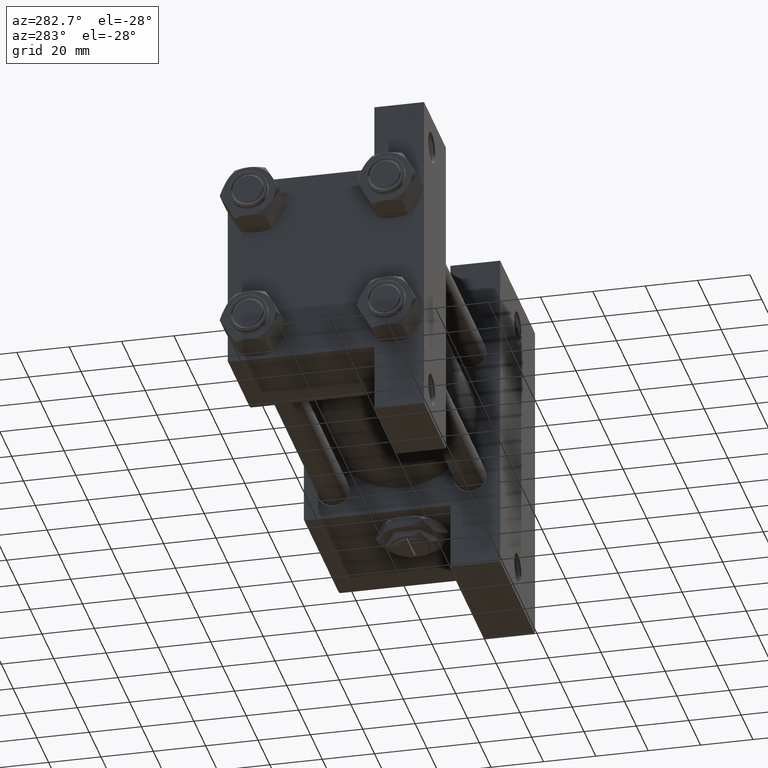
[diagram: clean part render]
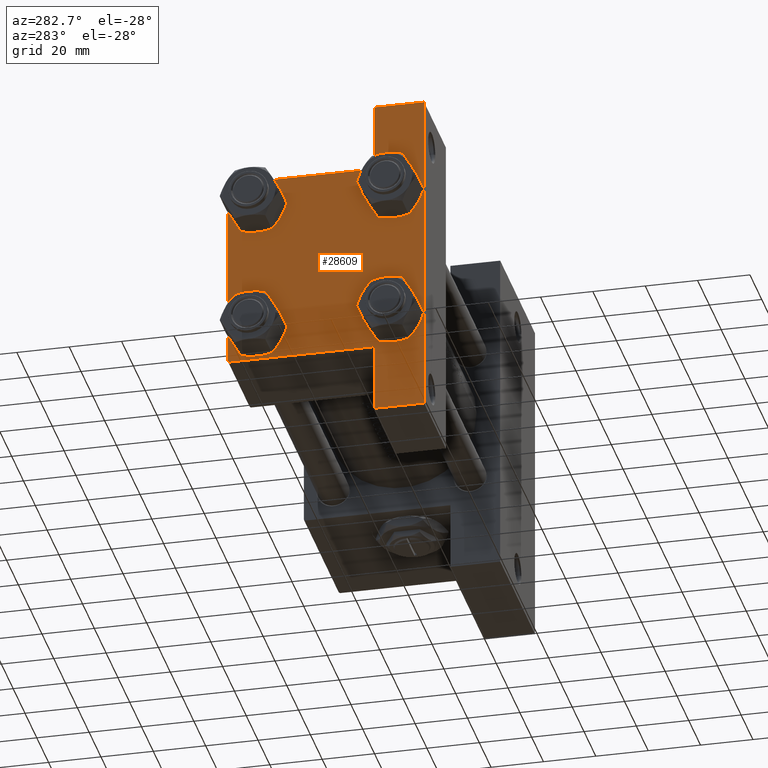
[diagram: same view with one face highlighted and labeled with its STEP entity id]
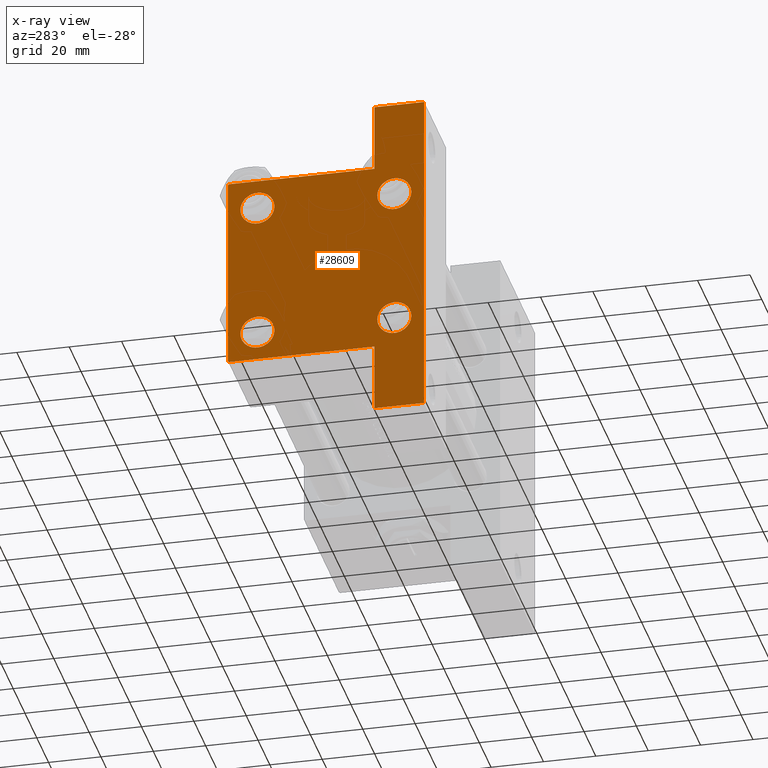
[diagram: x-ray of the same camera — body ghosted, the highlighted face saturated]
A machine part, auxiliary view. The second image highlights one B-rep face of the part: STEP entity #28609.
The next image is the same camera in x-ray: the body ghosted, the highlighted face saturated — about 0% of this face is hidden behind the body in this view.
In plain terms, the highlighted planar face has unit normal (-1, 0, -0).
Its self-contained STEP definition (entity closure, byte-faithful):
#204 = CARTESIAN_POINT ( 'NONE',  ( 3.977209754999744250E-16, -63.49999999999998579, -18.50000000000000355 ) ) ;
#778 = ORIENTED_EDGE ( 'NONE', *, *, #5366, .T. ) ;
#880 = CARTESIAN_POINT ( 'NONE',  ( 0.000000000000000000, 26.14999999999999858, 19.64999999999998437 ) ) ;
#1292 = LINE ( 'NONE', #38924, #31070 ) ;
#1486 = VECTOR ( 'NONE', #10148, 1000.000000000000000 ) ;
#1515 = CARTESIAN_POINT ( 'NONE',  ( 0.000000000000000000, -26.14999999999999147, -26.15000000000000924 ) ) ;
#2003 = EDGE_CURVE ( 'NONE', #48728, #31368, #10811, .T. ) ;
#2143 = AXIS2_PLACEMENT_3D ( 'NONE', #25685, #48849, #28938 ) ;
#2450 = CARTESIAN_POINT ( 'NONE',  ( 0.000000000000000000, -26.14999999999999147, -26.15000000000000924 ) ) ;
#2465 = FACE_BOUND ( 'NONE', #14787, .T. ) ;
#2484 = VERTEX_POINT ( 'NONE', #6618 ) ;
#2559 = ORIENTED_EDGE ( 'NONE', *, *, #16182, .T. ) ;
#3031 = VERTEX_POINT ( 'NONE', #19744 ) ;
#3149 = CARTESIAN_POINT ( 'NONE',  ( 3.977209754999747208E-16, -63.49999999999998579, 26.72167621838007889 ) ) ;
#3323 = VECTOR ( 'NONE', #20238, 1000.000000000000000 ) ;
#3776 = DIRECTION ( 'NONE',  ( 1.000000000000000000, -0.000000000000000000, 0.000000000000000000 ) ) ;
#3865 = AXIS2_PLACEMENT_3D ( 'NONE', #21056, #25279, #14094 ) ;
#3994 = EDGE_CURVE ( 'NONE', #10562, #34906, #47477, .T. ) ;
#4321 = CARTESIAN_POINT ( 'NONE',  ( 0.000000000000000000, 37.49999999999999289, -18.49999999999999645 ) ) ;
#4373 = VERTEX_POINT ( 'NONE', #11929 ) ;
#5366 = EDGE_CURVE ( 'NONE', #8129, #31760, #48011, .T. ) ;
#5531 = DIRECTION ( 'NONE',  ( -0.000000000000000000, 0.000000000000000000, 1.000000000000000000 ) ) ;
#6458 = AXIS2_PLACEMENT_3D ( 'NONE', #48037, #25602, #37326 ) ;
#6560 = CARTESIAN_POINT ( 'NONE',  ( 0.000000000000000000, 26.14999999999999858, -19.64999999999998792 ) ) ;
#6578 = ORIENTED_EDGE ( 'NONE', *, *, #11622, .T. ) ;
#6618 = CARTESIAN_POINT ( 'NONE',  ( 0.000000000000000000, -37.00000000000000711, 37.49999999999999289 ) ) ;
#6775 = CARTESIAN_POINT ( 'NONE',  ( 0.000000000000000000, 37.49999999999999289, 37.50000000000000000 ) ) ;
#6929 = CARTESIAN_POINT ( 'NONE',  ( 0.000000000000000000, 0.000000000000000000, 0.000000000000000000 ) ) ;
#7022 = LINE ( 'NONE', #6775, #34326 ) ;
#7112 = DIRECTION ( 'NONE',  ( -0.000000000000000000, 0.7071067811865474617, 0.7071067811865474617 ) ) ;
#7428 = DIRECTION ( 'NONE',  ( 1.000000000000000000, -0.000000000000000000, 0.000000000000000000 ) ) ;
#7674 = CARTESIAN_POINT ( 'NONE',  ( 0.000000000000000000, -37.50000000000000711, 37.49999999999999289 ) ) ;
#7938 = CIRCLE ( 'NONE', #48460, 6.500000000000023093 ) ;
#8129 = VERTEX_POINT ( 'NONE', #10785 ) ;
#8415 = DIRECTION ( 'NONE',  ( 4.278042683914906889E-17, -1.000000000000000000, 0.000000000000000000 ) ) ;
#8522 = EDGE_CURVE ( 'NONE', #32455, #21550, #22062, .T. ) ;
#9760 = EDGE_LOOP ( 'NONE', ( #35202, #31380 ) ) ;
#9894 = EDGE_CURVE ( 'NONE', #31760, #21550, #14749, .T. ) ;
#10148 = DIRECTION ( 'NONE',  ( 0.000000000000000000, -1.734723475976806848E-16, -1.000000000000000000 ) ) ;
#10562 = VERTEX_POINT ( 'NONE', #6560 ) ;
#10707 = ORIENTED_EDGE ( 'NONE', *, *, #24425, .T. ) ;
#10785 = CARTESIAN_POINT ( 'NONE',  ( 1.595073532467135441E-14, 63.50000000000000000, -18.50000000000000355 ) ) ;
#10811 = CIRCLE ( 'NONE', #39483, 6.500000000000015987 ) ;
#10905 = LINE ( 'NONE', #26079, #36569 ) ;
#11586 = EDGE_LOOP ( 'NONE', ( #25564, #24644 ) ) ;
#11622 = EDGE_CURVE ( 'NONE', #34906, #10562, #25343, .T. ) ;
#11829 = LINE ( 'NONE', #18570, #26233 ) ;
#11929 = CARTESIAN_POINT ( 'NONE',  ( 0.000000000000000000, 26.14999999999999858, 32.65000000000002700 ) ) ;
#12011 = DIRECTION ( 'NONE',  ( 0.000000000000000000, 0.000000000000000000, 1.000000000000000000 ) ) ;
#13547 = EDGE_CURVE ( 'NONE', #4373, #15682, #21394, .T. ) ;
#13787 = EDGE_LOOP ( 'NONE', ( #42604, #6578 ) ) ;
#13907 = DIRECTION ( 'NONE',  ( 0.000000000000000000, -1.734723475976806848E-16, -1.000000000000000000 ) ) ;
#14094 = DIRECTION ( 'NONE',  ( 0.000000000000000000, 0.000000000000000000, 1.000000000000000000 ) ) ;
#14749 = LINE ( 'NONE', #29926, #15048 ) ;
#14787 = EDGE_LOOP ( 'NONE', ( #28026, #10707 ) ) ;
#15048 = VECTOR ( 'NONE', #25203, 1000.000000000000000 ) ;
#15203 = CIRCLE ( 'NONE', #6458, 6.500000000000023093 ) ;
#15682 = VERTEX_POINT ( 'NONE', #880 ) ;
#16182 = EDGE_CURVE ( 'NONE', #23426, #41200, #39434, .T. ) ;
#16268 = EDGE_CURVE ( 'NONE', #43448, #2484, #7022, .T. ) ;
#16514 = CIRCLE ( 'NONE', #41964, 6.500000000000015987 ) ;
#17022 = CARTESIAN_POINT ( 'NONE',  ( 0.000000000000000000, 37.49999999999999289, 37.50000000000000000 ) ) ;
#17897 = FACE_OUTER_BOUND ( 'NONE', #37757, .T. ) ;
#17947 = ORIENTED_EDGE ( 'NONE', *, *, #45476, .T. ) ;
#18570 = CARTESIAN_POINT ( 'NONE',  ( -0.000000000000000000, -37.25000000000000000, 37.25000000000000000 ) ) ;
#19618 = DIRECTION ( 'NONE',  ( 0.000000000000000000, 9.251858538542971581E-17, -1.000000000000000000 ) ) ;
#19734 = DIRECTION ( 'NONE',  ( 0.000000000000000000, 0.7071067811865474617, -0.7071067811865474617 ) ) ;
#19744 = CARTESIAN_POINT ( 'NONE',  ( 0.000000000000000000, -26.14999999999999147, 19.64999999999999147 ) ) ;
#20238 = DIRECTION ( 'NONE',  ( 0.000000000000000000, 0.000000000000000000, -1.000000000000000000 ) ) ;
#20384 = CARTESIAN_POINT ( 'NONE',  ( 0.000000000000000000, 26.14999999999999858, -32.65000000000001990 ) ) ;
#20752 = CARTESIAN_POINT ( 'NONE',  ( 0.000000000000000000, -37.50000000000000711, 36.99999999999999289 ) ) ;
#20951 = DIRECTION ( 'NONE',  ( -2.877097866686192789E-16, -1.000000000000000000, 0.000000000000000000 ) ) ;
#21020 = CARTESIAN_POINT ( 'NONE',  ( -7.145701223179004046E-16, -37.50000000000000711, -18.50000000000000355 ) ) ;
#21056 = CARTESIAN_POINT ( 'NONE',  ( 0.000000000000000000, 26.14999999999999858, -26.15000000000000213 ) ) ;
#21300 = ORIENTED_EDGE ( 'NONE', *, *, #8522, .F. ) ;
#21394 = CIRCLE ( 'NONE', #49239, 6.500000000000023093 ) ;
#21508 = DIRECTION ( 'NONE',  ( 1.000000000000000000, -0.000000000000000000, 0.000000000000000000 ) ) ;
#21550 = VERTEX_POINT ( 'NONE', #42457 ) ;
#22062 = LINE ( 'NONE', #3149, #1486 ) ;
#22178 = VERTEX_POINT ( 'NONE', #21020 ) ;
#22910 = ORIENTED_EDGE ( 'NONE', *, *, #32434, .F. ) ;
#23426 = VERTEX_POINT ( 'NONE', #41877 ) ;
#23771 = AXIS2_PLACEMENT_3D ( 'NONE', #6929, #25600, #5531 ) ;
#23833 = CARTESIAN_POINT ( 'NONE',  ( 3.977209754999747208E-16, -63.50000000000000000, -18.50000000000000355 ) ) ;
#23927 = VECTOR ( 'NONE', #19618, 1000.000000000000000 ) ;
#24425 = EDGE_CURVE ( 'NONE', #31368, #48728, #16514, .T. ) ;
#24644 = ORIENTED_EDGE ( 'NONE', *, *, #34448, .T. ) ;
#25203 = DIRECTION ( 'NONE',  ( 0.000000000000000000, -1.000000000000000000, -9.251858538542972814E-17 ) ) ;
#25279 = DIRECTION ( 'NONE',  ( 1.000000000000000000, -0.000000000000000000, 0.000000000000000000 ) ) ;
#25343 = CIRCLE ( 'NONE', #3865, 6.500000000000015987 ) ;
#25564 = ORIENTED_EDGE ( 'NONE', *, *, #28700, .T. ) ;
#25600 = DIRECTION ( 'NONE',  ( -1.000000000000000000, 0.000000000000000000, -0.000000000000000000 ) ) ;
#25602 = DIRECTION ( 'NONE',  ( 1.000000000000000000, -0.000000000000000000, 0.000000000000000000 ) ) ;
#25640 = EDGE_CURVE ( 'NONE', #22178, #32455, #31071, .T. ) ;
#25685 = CARTESIAN_POINT ( 'NONE',  ( 0.000000000000000000, 26.14999999999999858, -26.15000000000000213 ) ) ;
#26079 = CARTESIAN_POINT ( 'NONE',  ( 1.595073532467135757E-14, 63.50000000000001421, -18.50000000000000355 ) ) ;
#26233 = VECTOR ( 'NONE', #7112, 1000.000000000000114 ) ;
#28026 = ORIENTED_EDGE ( 'NONE', *, *, #2003, .T. ) ;
#28267 = VERTEX_POINT ( 'NONE', #20752 ) ;
#28609 = ADVANCED_FACE ( 'NONE', ( #48272, #2465, #33084, #36839, #17897 ), #40817, .T. ) ;
#28667 = AXIS2_PLACEMENT_3D ( 'NONE', #38161, #3776, #12011 ) ;
#28700 = EDGE_CURVE ( 'NONE', #41594, #3031, #7938, .T. ) ;
#28938 = DIRECTION ( 'NONE',  ( 0.000000000000000000, 0.000000000000000000, 1.000000000000000000 ) ) ;
#29078 = DIRECTION ( 'NONE',  ( 0.000000000000000000, 0.000000000000000000, 1.000000000000000000 ) ) ;
#29887 = CARTESIAN_POINT ( 'NONE',  ( 0.000000000000000000, -26.14999999999999147, -32.65000000000002700 ) ) ;
#29926 = CARTESIAN_POINT ( 'NONE',  ( 0.000000000000000000, 37.49999999999999289, -37.50000000000000000 ) ) ;
#31070 = VECTOR ( 'NONE', #19734, 1000.000000000000114 ) ;
#31071 = LINE ( 'NONE', #204, #42827 ) ;
#31113 = ORIENTED_EDGE ( 'NONE', *, *, #49053, .F. ) ;
#31368 = VERTEX_POINT ( 'NONE', #29887 ) ;
#31380 = ORIENTED_EDGE ( 'NONE', *, *, #35811, .T. ) ;
#31760 = VERTEX_POINT ( 'NONE', #39718 ) ;
#32027 = EDGE_CURVE ( 'NONE', #43448, #23426, #1292, .T. ) ;
#32434 = EDGE_CURVE ( 'NONE', #28267, #22178, #45777, .T. ) ;
#32455 = VERTEX_POINT ( 'NONE', #23833 ) ;
#32736 = CARTESIAN_POINT ( 'NONE',  ( 0.000000000000000000, 26.14999999999999858, 26.15000000000000213 ) ) ;
#33084 = FACE_BOUND ( 'NONE', #13787, .T. ) ;
#33810 = DIRECTION ( 'NONE',  ( 0.000000000000000000, 0.000000000000000000, 1.000000000000000000 ) ) ;
#34296 = CARTESIAN_POINT ( 'NONE',  ( 0.000000000000000000, 36.99999999999999289, 37.50000000000000000 ) ) ;
#34326 = VECTOR ( 'NONE', #45132, 1000.000000000000000 ) ;
#34448 = EDGE_CURVE ( 'NONE', #3031, #41594, #43786, .T. ) ;
#34906 = VERTEX_POINT ( 'NONE', #20384 ) ;
#35202 = ORIENTED_EDGE ( 'NONE', *, *, #13547, .T. ) ;
#35786 = ORIENTED_EDGE ( 'NONE', *, *, #16268, .F. ) ;
#35811 = EDGE_CURVE ( 'NONE', #15682, #4373, #15203, .T. ) ;
#36569 = VECTOR ( 'NONE', #20951, 1000.000000000000000 ) ;
#36839 = FACE_BOUND ( 'NONE', #9760, .T. ) ;
#37326 = DIRECTION ( 'NONE',  ( 0.000000000000000000, 0.000000000000000000, 1.000000000000000000 ) ) ;
#37757 = EDGE_LOOP ( 'NONE', ( #22910, #17947, #35786, #48603, #2559, #31113, #778, #47183, #21300, #44466 ) ) ;
#38161 = CARTESIAN_POINT ( 'NONE',  ( 0.000000000000000000, -26.14999999999999147, 26.15000000000000924 ) ) ;
#38219 = DIRECTION ( 'NONE',  ( 0.000000000000000000, 0.000000000000000000, 1.000000000000000000 ) ) ;
#38924 = CARTESIAN_POINT ( 'NONE',  ( 0.000000000000000000, 37.24999999999999289, 37.24999999999999289 ) ) ;
#39434 = LINE ( 'NONE', #17022, #3323 ) ;
#39483 = AXIS2_PLACEMENT_3D ( 'NONE', #2450, #43307, #29078 ) ;
#39718 = CARTESIAN_POINT ( 'NONE',  ( 1.595073532467135441E-14, 63.50000000000000000, -37.50000000000002132 ) ) ;
#40624 = CARTESIAN_POINT ( 'NONE',  ( 0.000000000000000000, -26.14999999999999147, 32.65000000000003411 ) ) ;
#40817 = PLANE ( 'NONE',  #23771 ) ;
#41200 = VERTEX_POINT ( 'NONE', #4321 ) ;
#41594 = VERTEX_POINT ( 'NONE', #40624 ) ;
#41877 = CARTESIAN_POINT ( 'NONE',  ( 0.000000000000000000, 37.49999999999999289, 37.00000000000000000 ) ) ;
#41964 = AXIS2_PLACEMENT_3D ( 'NONE', #1515, #43623, #38219 ) ;
#42457 = CARTESIAN_POINT ( 'NONE',  ( 3.977209754999747208E-16, -63.50000000000000000, -37.49999999999999289 ) ) ;
#42604 = ORIENTED_EDGE ( 'NONE', *, *, #3994, .T. ) ;
#42827 = VECTOR ( 'NONE', #8415, 1000.000000000000000 ) ;
#43307 = DIRECTION ( 'NONE',  ( 1.000000000000000000, -0.000000000000000000, 0.000000000000000000 ) ) ;
#43448 = VERTEX_POINT ( 'NONE', #34296 ) ;
#43548 = CARTESIAN_POINT ( 'NONE',  ( 1.595073532467135441E-14, 63.50000000000001421, 26.72167621838005047 ) ) ;
#43623 = DIRECTION ( 'NONE',  ( 1.000000000000000000, -0.000000000000000000, 0.000000000000000000 ) ) ;
#43786 = CIRCLE ( 'NONE', #28667, 6.500000000000023093 ) ;
#44466 = ORIENTED_EDGE ( 'NONE', *, *, #25640, .F. ) ;
#44660 = CARTESIAN_POINT ( 'NONE',  ( 0.000000000000000000, -26.14999999999999147, -19.64999999999999503 ) ) ;
#45132 = DIRECTION ( 'NONE',  ( 0.000000000000000000, -1.000000000000000000, -9.251858538542971581E-17 ) ) ;
#45476 = EDGE_CURVE ( 'NONE', #28267, #2484, #11829, .T. ) ;
#45777 = LINE ( 'NONE', #7674, #23927 ) ;
#45946 = VECTOR ( 'NONE', #13907, 1000.000000000000000 ) ;
#47183 = ORIENTED_EDGE ( 'NONE', *, *, #9894, .T. ) ;
#47477 = CIRCLE ( 'NONE', #2143, 6.500000000000015987 ) ;
#48011 = LINE ( 'NONE', #43548, #45946 ) ;
#48037 = CARTESIAN_POINT ( 'NONE',  ( 0.000000000000000000, 26.14999999999999858, 26.15000000000000213 ) ) ;
#48153 = DIRECTION ( 'NONE',  ( 0.000000000000000000, 0.000000000000000000, 1.000000000000000000 ) ) ;
#48272 = FACE_BOUND ( 'NONE', #11586, .T. ) ;
#48460 = AXIS2_PLACEMENT_3D ( 'NONE', #49253, #7428, #33810 ) ;
#48603 = ORIENTED_EDGE ( 'NONE', *, *, #32027, .T. ) ;
#48728 = VERTEX_POINT ( 'NONE', #44660 ) ;
#48849 = DIRECTION ( 'NONE',  ( 1.000000000000000000, -0.000000000000000000, 0.000000000000000000 ) ) ;
#49053 = EDGE_CURVE ( 'NONE', #8129, #41200, #10905, .T. ) ;
#49239 = AXIS2_PLACEMENT_3D ( 'NONE', #32736, #21508, #48153 ) ;
#49253 = CARTESIAN_POINT ( 'NONE',  ( 0.000000000000000000, -26.14999999999999147, 26.15000000000000924 ) ) ;